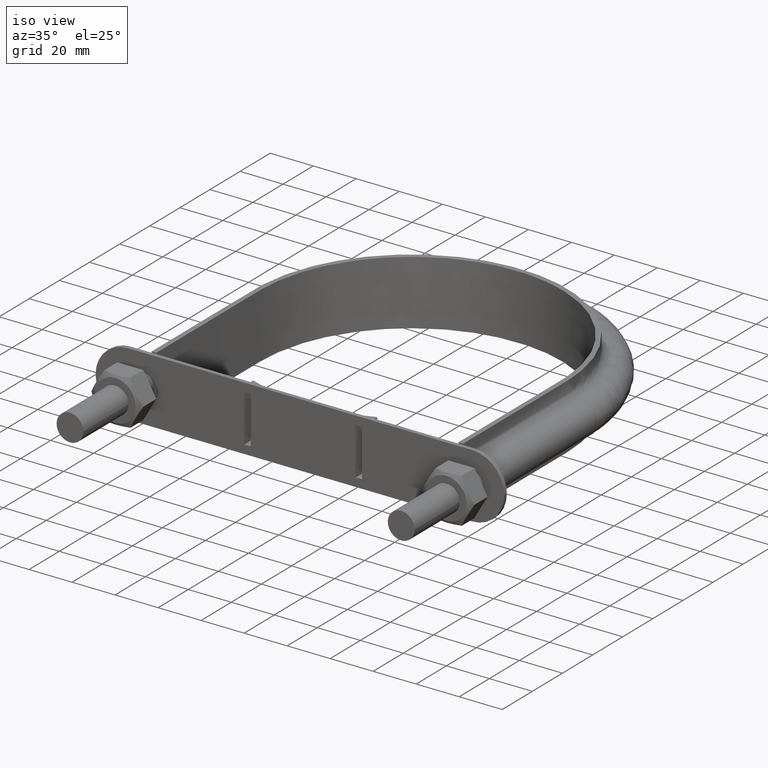
[diagram: clean part render]
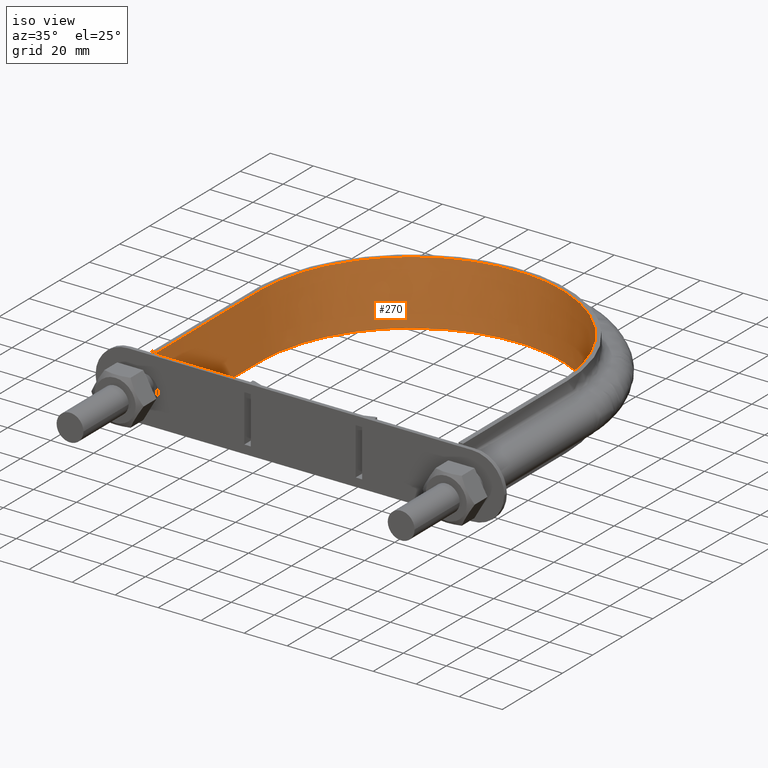
[diagram: same view with one face highlighted and labeled with its STEP entity id]
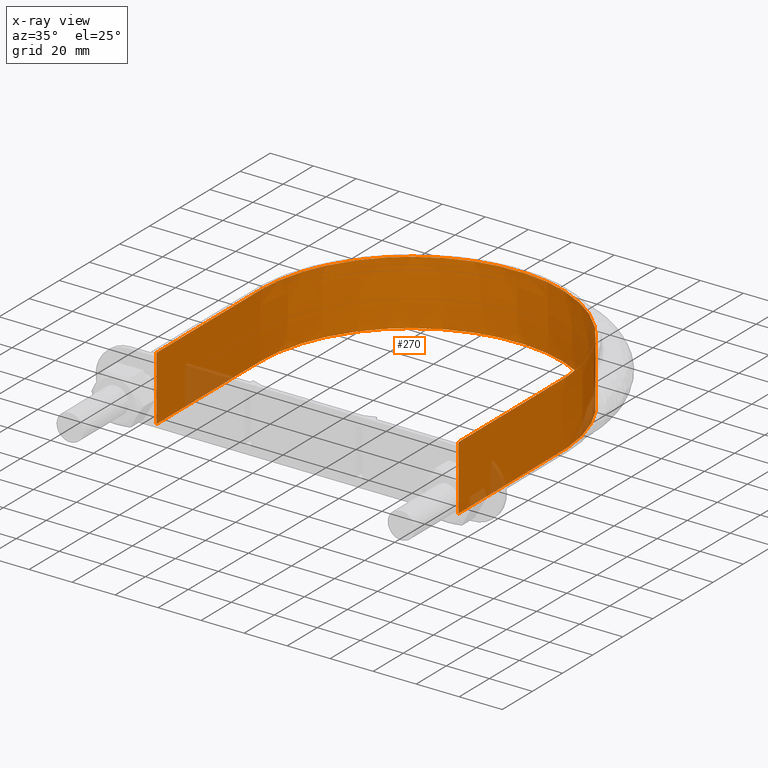
[diagram: x-ray of the same camera — body ghosted, the highlighted face saturated]
A machine part, iso view. The second image highlights one B-rep face of the part: STEP entity #270.
The next image is the same camera in x-ray: the body ghosted, the highlighted face saturated — about 5% of this face is hidden behind the body in this view.
In plain terms, the highlighted face is a SurfaceOfExtrusion surface.
Its self-contained STEP definition (entity closure, byte-faithful):
#270 = ADVANCED_FACE( '', ( #353 ), #354, .T. );
#353 = FACE_OUTER_BOUND( '', #540, .T. );
#354 = SURFACE_OF_LINEAR_EXTRUSION( '', #541, #542 );
#540 = EDGE_LOOP( '', ( #1588, #1589, #1590, #1591 ) );
#541 = B_SPLINE_CURVE_WITH_KNOTS( '', 3, ( #1592, #1593, #1594, #1595, #1596, #1597, #1598, #1599, #1600, #1601, #1602, #1603, #1604, #1605, #1606, #1607 ), .UNSPECIFIED., .F., .F., ( 4, 3, 1, 1, 1, 1, 1, 1, 3, 4 ), ( -9.00000000000000, -8.00000000000000, -7.00000000000000, -6.00000000000000, -5.00000000000000, -4.00000000000000, -3.00000000000000, -2.00000000000000, -1.00000000000000, 0.000000000000000 ), .UNSPECIFIED. );
#542 = VECTOR( '', #1608, 1000.00000000000 );
#1588 = ORIENTED_EDGE( '', *, *, #2153, .F. );
#1589 = ORIENTED_EDGE( '', *, *, #2142, .F. );
#1590 = ORIENTED_EDGE( '', *, *, #2146, .T. );
#1591 = ORIENTED_EDGE( '', *, *, #2150, .T. );
#1592 = CARTESIAN_POINT( '', ( -70.2500000000000, 47.7100000000000, -237.081057040700 ) );
#1593 = CARTESIAN_POINT( '', ( -70.2500000000000, 70.7266666666667, -237.081057040700 ) );
#1594 = CARTESIAN_POINT( '', ( -70.2500000000000, 93.7433333333333, -237.081057040700 ) );
#1595 = CARTESIAN_POINT( '', ( -70.2500000000000, 116.760000000000, -237.081057040700 ) );
#1596 = CARTESIAN_POINT( '', ( -70.2500000000000, 127.249418134732, -237.081057040700 ) );
#1597 = CARTESIAN_POINT( '', ( -65.4537147955432, 148.288971927909, -237.081057040700 ) );
#1598 = CARTESIAN_POINT( '', ( -45.2953760364684, 173.556467088273, -237.081057040700 ) );
#1599 = CARTESIAN_POINT( '', ( -16.1657325420394, 187.587129579273, -237.081057040700 ) );
#1600 = CARTESIAN_POINT( '', ( 16.1657325420395, 187.587129579273, -237.081057040700 ) );
#1601 = CARTESIAN_POINT( '', ( 45.2953760364684, 173.556467088273, -237.081057040700 ) );
#1602 = CARTESIAN_POINT( '', ( 65.4537147955432, 148.288971927909, -237.081057040700 ) );
#1603 = CARTESIAN_POINT( '', ( 70.2500000000000, 127.249418134732, -237.081057040700 ) );
#1604 = CARTESIAN_POINT( '', ( 70.2500000000000, 116.760000000000, -237.081057040700 ) );
#1605 = CARTESIAN_POINT( '', ( 70.2500000000000, 93.7433333333333, -237.081057040700 ) );
#1606 = CARTESIAN_POINT( '', ( 70.2500000000000, 70.7266666666667, -237.081057040700 ) );
#1607 = CARTESIAN_POINT( '', ( 70.2500000000000, 47.7100000000000, -237.081057040700 ) );
#1608 = DIRECTION( '', ( 0.000000000000000, 0.000000000000000, 1.00000000000000 ) );
#2142 = EDGE_CURVE( '', #2313, #2314, #2315, .T. );
#2146 = EDGE_CURVE( '', #2313, #2321, #2322, .T. );
#2150 = EDGE_CURVE( '', #2321, #2328, #2329, .T. );
#2153 = EDGE_CURVE( '', #2314, #2328, #2333, .T. );
#2313 = VERTEX_POINT( '', #2619 );
#2314 = VERTEX_POINT( '', #2620 );
#2315 = LINE( '', #2621, #2622 );
#2321 = VERTEX_POINT( '', #2660 );
#2322 = B_SPLINE_CURVE_WITH_KNOTS( '', 3, ( #2661, #2662, #2663, #2664, #2665, #2666, #2667, #2668, #2669, #2670, #2671, #2672, #2673, #2674, #2675, #2676 ), .UNSPECIFIED., .F., .F., ( 4, 3, 1, 1, 1, 1, 1, 1, 3, 4 ), ( -9.00000000000000, -8.00000000000000, -7.00000000000000, -6.00000000000000, -5.00000000000000, -4.00000000000000, -3.00000000000000, -2.00000000000000, -1.00000000000000, 0.000000000000000 ), .UNSPECIFIED. );
#2328 = VERTEX_POINT( '', #2708 );
#2329 = LINE( '', #2709, #2710 );
#2333 = B_SPLINE_CURVE_WITH_KNOTS( '', 3, ( #2745, #2746, #2747, #2748, #2749, #2750, #2751, #2752, #2753, #2754, #2755, #2756, #2757, #2758, #2759, #2760 ), .UNSPECIFIED., .F., .F., ( 4, 3, 1, 1, 1, 1, 1, 1, 3, 4 ), ( -9.00000000000000, -8.00000000000000, -7.00000000000000, -6.00000000000000, -5.00000000000000, -4.00000000000000, -3.00000000000000, -2.00000000000000, -1.00000000000000, 0.000000000000000 ), .UNSPECIFIED. );
#2619 = CARTESIAN_POINT( '', ( -70.2500000000000, 47.7100000000000, -15.0000000000000 ) );
#2620 = CARTESIAN_POINT( '', ( -70.2500000000000, 47.7100000000000, 15.0000000000000 ) );
#2621 = CARTESIAN_POINT( '', ( -70.2500000000000, 47.7100000000000, -237.081057040700 ) );
#2622 = VECTOR( '', #3325, 1000.00000000000 );
#2660 = CARTESIAN_POINT( '', ( 70.2500000000000, 47.7100000000000, -15.0000000000000 ) );
#2661 = CARTESIAN_POINT( '', ( -70.2500000000000, 47.7100000000000, -15.0000000000000 ) );
#2662 = CARTESIAN_POINT( '', ( -70.2500000000000, 70.7266666666667, -15.0000000000000 ) );
#2663 = CARTESIAN_POINT( '', ( -70.2500000000000, 93.7433333333333, -15.0000000000000 ) );
#2664 = CARTESIAN_POINT( '', ( -70.2500000000000, 116.760000000000, -15.0000000000000 ) );
#2665 = CARTESIAN_POINT( '', ( -70.2500000000000, 127.249418134732, -15.0000000000000 ) );
#2666 = CARTESIAN_POINT( '', ( -65.4537147955432, 148.288971927909, -15.0000000000000 ) );
#2667 = CARTESIAN_POINT( '', ( -45.2953760364684, 173.556467088273, -15.0000000000000 ) );
#2668 = CARTESIAN_POINT( '', ( -16.1657325420394, 187.587129579273, -15.0000000000000 ) );
#2669 = CARTESIAN_POINT( '', ( 16.1657325420395, 187.587129579273, -15.0000000000000 ) );
#2670 = CARTESIAN_POINT( '', ( 45.2953760364684, 173.556467088273, -15.0000000000000 ) );
#2671 = CARTESIAN_POINT( '', ( 65.4537147955432, 148.288971927909, -15.0000000000000 ) );
#2672 = CARTESIAN_POINT( '', ( 70.2500000000000, 127.249418134732, -15.0000000000000 ) );
#2673 = CARTESIAN_POINT( '', ( 70.2500000000000, 116.760000000000, -15.0000000000000 ) );
#2674 = CARTESIAN_POINT( '', ( 70.2500000000000, 93.7433333333333, -15.0000000000000 ) );
#2675 = CARTESIAN_POINT( '', ( 70.2500000000000, 70.7266666666667, -15.0000000000000 ) );
#2676 = CARTESIAN_POINT( '', ( 70.2500000000000, 47.7100000000000, -15.0000000000000 ) );
#2708 = CARTESIAN_POINT( '', ( 70.2500000000000, 47.7100000000000, 15.0000000000000 ) );
#2709 = CARTESIAN_POINT( '', ( 70.2500000000000, 47.7100000000000, -237.081057040700 ) );
#2710 = VECTOR( '', #3329, 1000.00000000000 );
#2745 = CARTESIAN_POINT( '', ( -70.2500000000000, 47.7100000000000, 15.0000000000000 ) );
#2746 = CARTESIAN_POINT( '', ( -70.2500000000000, 70.7266666666667, 15.0000000000000 ) );
#2747 = CARTESIAN_POINT( '', ( -70.2500000000000, 93.7433333333333, 15.0000000000000 ) );
#2748 = CARTESIAN_POINT( '', ( -70.2500000000000, 116.760000000000, 15.0000000000000 ) );
#2749 = CARTESIAN_POINT( '', ( -70.2500000000000, 127.249418134732, 15.0000000000000 ) );
#2750 = CARTESIAN_POINT( '', ( -65.4537147955432, 148.288971927909, 15.0000000000000 ) );
#2751 = CARTESIAN_POINT( '', ( -45.2953760364684, 173.556467088273, 15.0000000000000 ) );
#2752 = CARTESIAN_POINT( '', ( -16.1657325420394, 187.587129579273, 15.0000000000000 ) );
#2753 = CARTESIAN_POINT( '', ( 16.1657325420395, 187.587129579273, 15.0000000000000 ) );
#2754 = CARTESIAN_POINT( '', ( 45.2953760364684, 173.556467088273, 15.0000000000000 ) );
#2755 = CARTESIAN_POINT( '', ( 65.4537147955432, 148.288971927909, 15.0000000000000 ) );
#2756 = CARTESIAN_POINT( '', ( 70.2500000000000, 127.249418134732, 15.0000000000000 ) );
#2757 = CARTESIAN_POINT( '', ( 70.2500000000000, 116.760000000000, 15.0000000000000 ) );
#2758 = CARTESIAN_POINT( '', ( 70.2500000000000, 93.7433333333333, 15.0000000000000 ) );
#2759 = CARTESIAN_POINT( '', ( 70.2500000000000, 70.7266666666667, 15.0000000000000 ) );
#2760 = CARTESIAN_POINT( '', ( 70.2500000000000, 47.7100000000000, 15.0000000000000 ) );
#3325 = DIRECTION( '', ( 0.000000000000000, 0.000000000000000, 1.00000000000000 ) );
#3329 = DIRECTION( '', ( 0.000000000000000, 0.000000000000000, 1.00000000000000 ) );